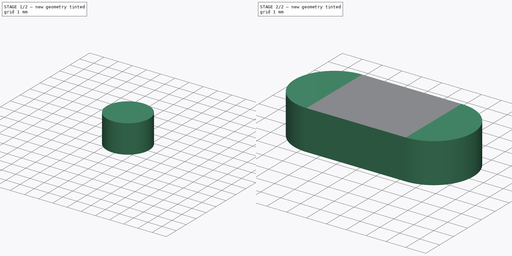
[diagram: build sequence overview — one tinted view per stage of 2, left to right]
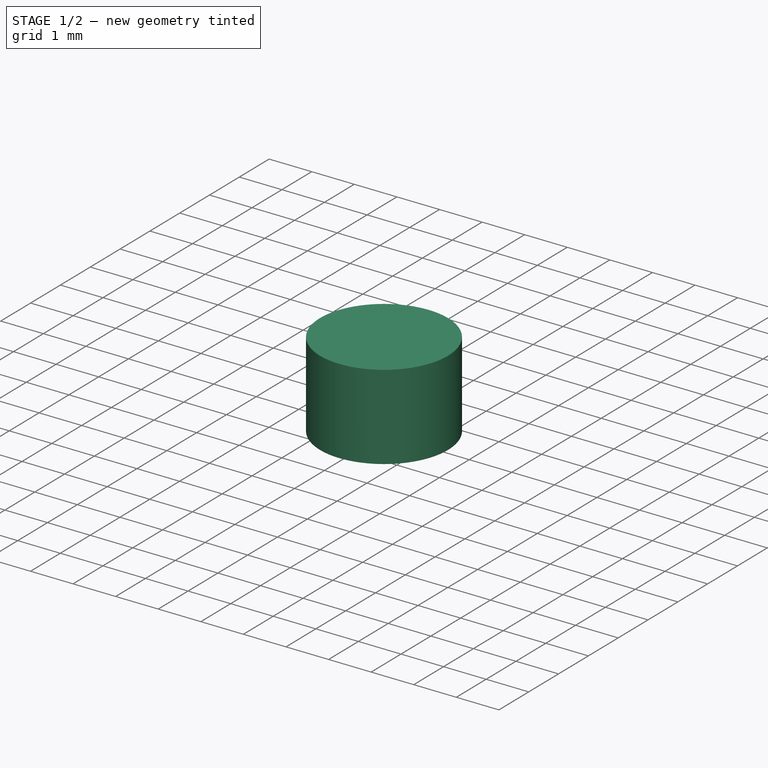
[diagram: stage 1 of 2 — iso view after this stage's code; geometry added in this stage tinted green]
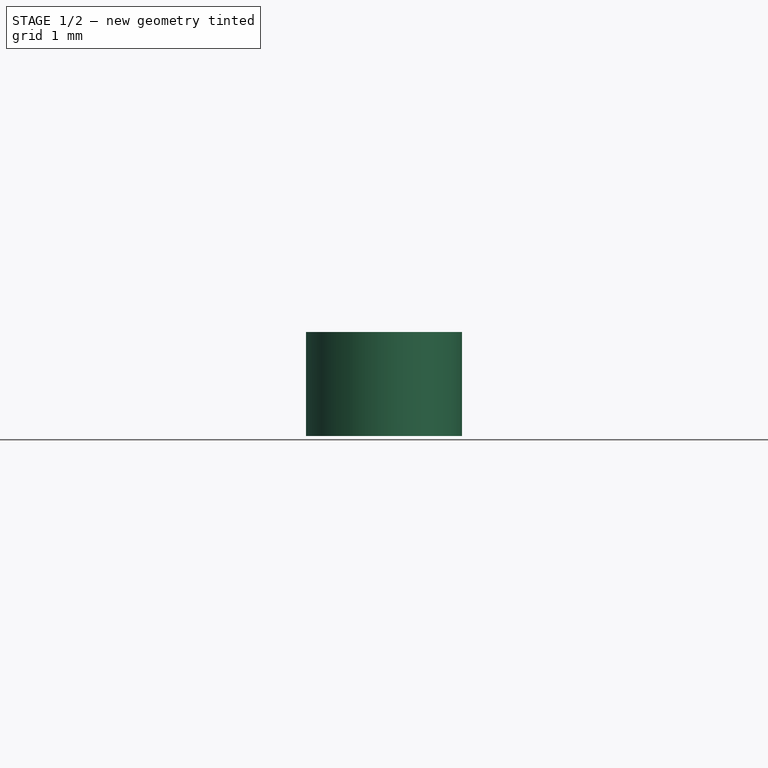
[diagram: stage 1 of 2 — front view after this stage's code; geometry added in this stage tinted green]
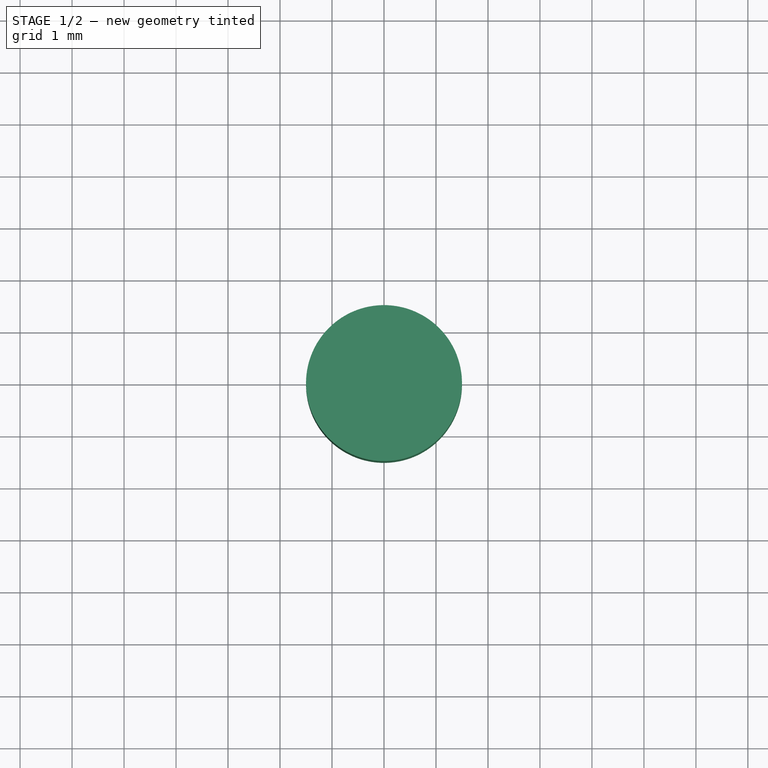
[diagram: stage 1 of 2 — top view after this stage's code; geometry added in this stage tinted green]
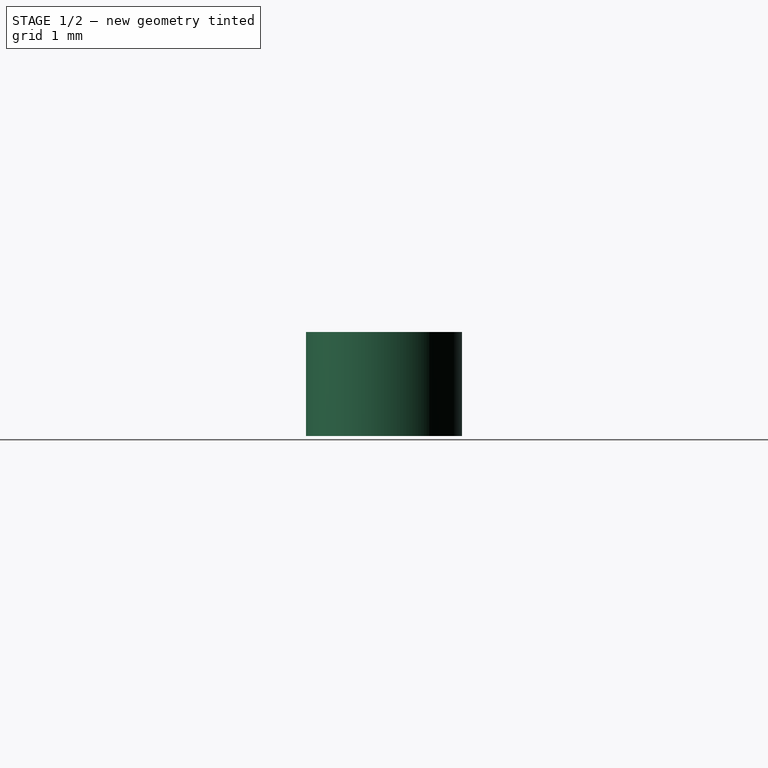
[diagram: stage 1 of 2 — right view after this stage's code; geometry added in this stage tinted green]
FCSTD DOCUMENT  (FreeCAD 0.18.1R)
Label: end_panel
License: All rights reserved
LicenseURL: http://en.wikipedia.org/wiki/All_rights_reserved
objects: Sketcher::SketchObject×3, PartDesign::Pad×2, PartDesign::Body×2, TechDraw::DrawSVGTemplate×1, TechDraw::DrawViewPart×1, TechDraw::DrawPage×1
note: 9 computed .brp shape members not serialized (recipe doc carries the construction recipe); baked Part::Feature solids carry a one-line shape summary decoded from their .brp

FEATURE [PartDesign::Body] Body
  Group = -> [Sketch,Sketch001,Pad]
  Origin = -> Origin
  Tip = -> Pad
FEATURE [Sketcher::SketchObject] Sketch002
  MapMode = 5
  Support = -> [XY_Plane001]
  sketch-geometry (1):
    g0: Circle CenterX=0 CenterY=0 CenterZ=0 NormalX=0 NormalY=0 NormalZ=1 AngleXU=0 Radius=1.5
  constraints (2):
    c: Diameter(g0) = 3
    c: Coincident(g0,g-1)
FEATURE [PartDesign::Pad] Pad001
  Length = 2
  Length2 = 100
  Profile = -> Sketch002
  Refine = true
  Type = 0
FEATURE [PartDesign::Body] Body001
  Group = -> [Sketch002,Pad001]
  Origin = -> Origin001
  Placement = pos=(0,5,0) rot=(0,0,1;0rad)
  Tip = -> Pad001
FEATURE [TechDraw::DrawSVGTemplate] Template
  Height = 210
  Orientation = 1
  Width = 297
FEATURE [TechDraw::DrawViewPart] View
  CoarseView = false
  Direction = (0,0,1)
  Focus = 100
  HardHidden = false
  IsoCount = 0
  IsoHidden = false
  IsoVisible = false
  LockPosition = false
  Perspective = false
  Rotation = 0
  ScaleType = 0
  SeamHidden = false
  SeamVisible = false
  SmoothHidden = false
  SmoothVisible = false
  Source = -> [Body001,Body]
  X = 148.5
  Y = 105
FEATURE [TechDraw::DrawPage] Page
  KeepUpdated = true
  ProjectionType = 0
  Template = -> Template
  Views = -> [View]
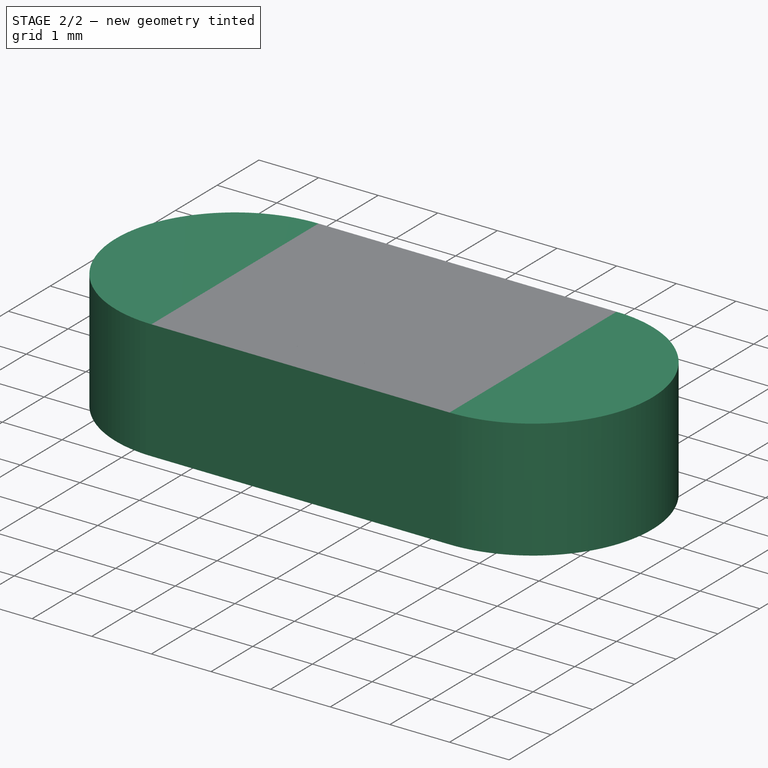
[diagram: stage 2 of 2 — iso view after this stage's code; geometry added in this stage tinted green]
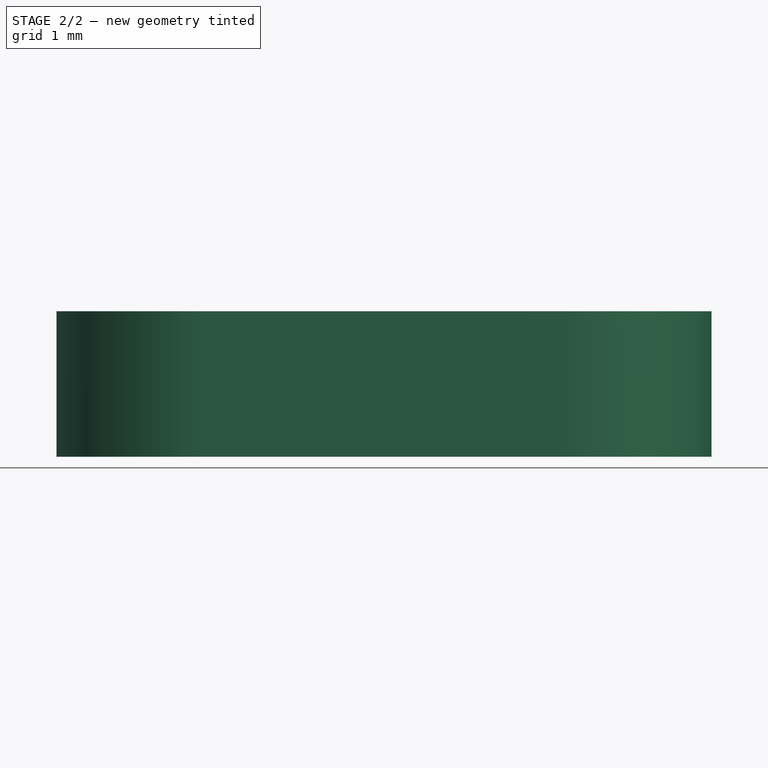
[diagram: stage 2 of 2 — front view after this stage's code; geometry added in this stage tinted green]
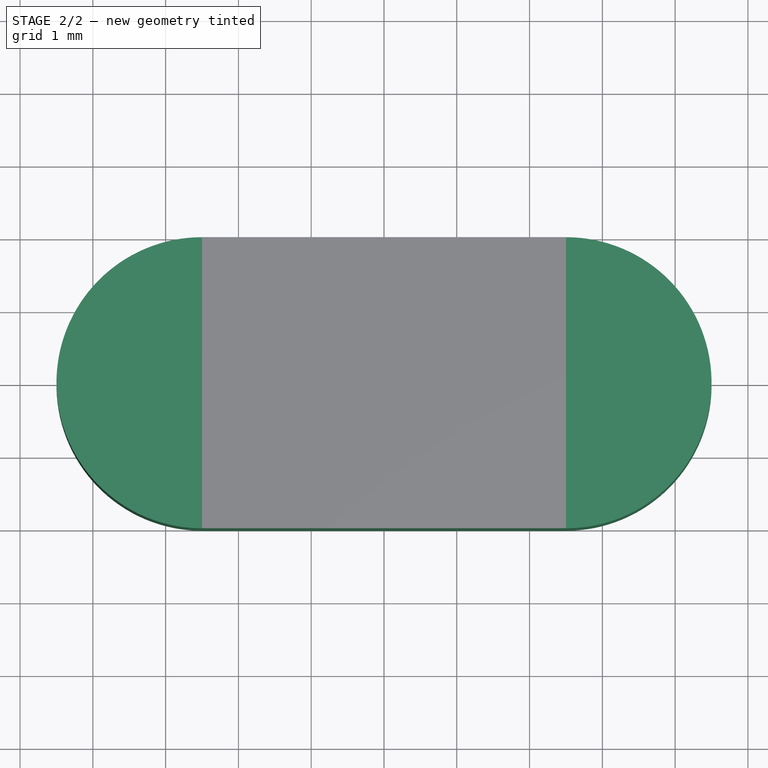
[diagram: stage 2 of 2 — top view after this stage's code; geometry added in this stage tinted green]
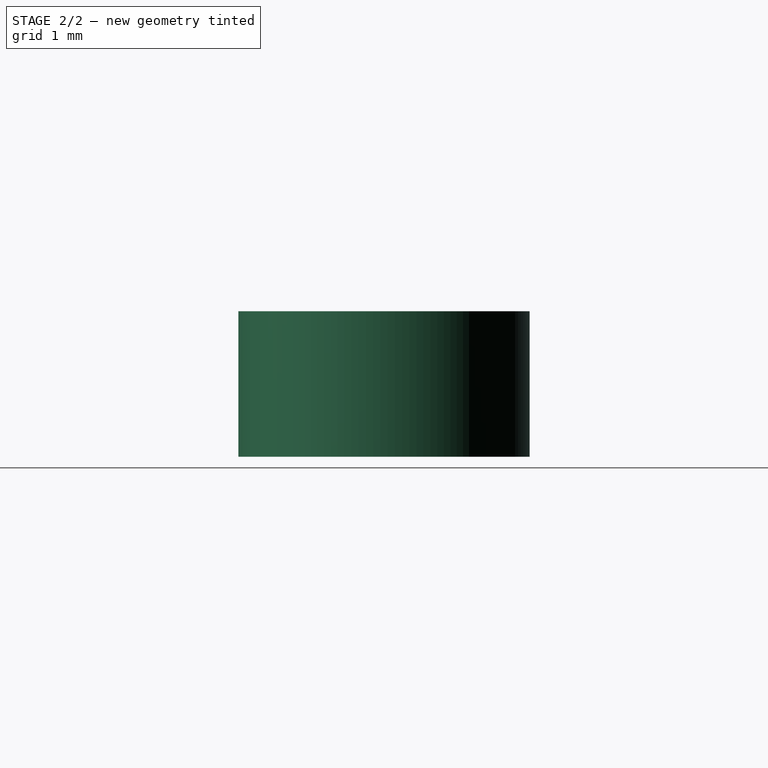
[diagram: stage 2 of 2 — right view after this stage's code; geometry added in this stage tinted green]
FEATURE [Sketcher::SketchObject] Sketch
  MapMode = 5
  Support = -> [XY_Plane]
  sketch-geometry (22):
    g0: Circle CenterX=0 CenterY=-5.7 CenterZ=0 NormalX=0 NormalY=0 NormalZ=1 AngleXU=0 Radius=2.3
    g1: Circle CenterX=0 CenterY=-5.7 CenterZ=0 NormalX=0 NormalY=0 NormalZ=1 AngleXU=0 Radius=1.6
    g2: LineSegment StartX=-29.8 StartY=11.3 StartZ=0 EndX=29.8 EndY=11.3 EndZ=0
    g3: LineSegment StartX=29.8 StartY=11.3 StartZ=0 EndX=29.8 EndY=-11.3 EndZ=0
    g4: LineSegment StartX=29.8 StartY=-11.3 StartZ=0 EndX=-29.8 EndY=-11.3 EndZ=0
    g5: LineSegment StartX=-29.8 StartY=-11.3 StartZ=0 EndX=-29.8 EndY=11.3 EndZ=0
    g6: LineSegment StartX=-28.45 StartY=10.3 StartZ=0 EndX=28.45 EndY=10.3 EndZ=0
    g7: LineSegment StartX=28.45 StartY=10.3 StartZ=0 EndX=28.45 EndY=-10.3 EndZ=0
    g8: LineSegment StartX=28.45 StartY=-10.3 StartZ=0 EndX=-28.45 EndY=-10.3 EndZ=0
    g9: LineSegment StartX=-28.45 StartY=-10.3 StartZ=0 EndX=-28.45 EndY=10.3 EndZ=0
    g10: GeomPoint X=0 Y=11.3 Z=0
    g11: GeomPoint X=-28.45 Y=0 Z=0
    g12: GeomPoint X=29.8 Y=0 Z=0
    g13: GeomPoint X=0 Y=-10.3 Z=0
    g14: LineSegment [constr] StartX=-29.8 StartY=11.3 StartZ=0 EndX=0 EndY=11.3 EndZ=0
    g15: LineSegment [constr] StartX=0 StartY=11.3 StartZ=0 EndX=29.8 EndY=11.3 EndZ=0
    g16: LineSegment [constr] StartX=29.8 StartY=11.3 StartZ=0 EndX=29.8 EndY=0 EndZ=0
    g17: LineSegment [constr] StartX=29.8 StartY=0 StartZ=0 EndX=29.8 EndY=-11.3 EndZ=0
    g18: LineSegment [constr] StartX=28.45 StartY=-10.3 StartZ=0 EndX=0 EndY=-10.3 EndZ=0
    g19: LineSegment [constr] StartX=-28.45 StartY=-10.3 StartZ=0 EndX=0 EndY=-10.3 EndZ=0
    g20: LineSegment [constr] StartX=-28.45 StartY=-10.3 StartZ=0 EndX=-28.45 EndY=0 EndZ=0
    g21: LineSegment [constr] StartX=-28.45 StartY=0 StartZ=0 EndX=-28.45 EndY=10.3 EndZ=0
  constraints (53):
    c: PointOnObject(g0,g-2)
    c: Coincident(g1,g0)
    c: Coincident(g3,g4)
    c: Coincident(g4,g5)
    c: Horizontal(g2)
    c: Horizontal(g4)
    c: Vertical(g3)
    c: Vertical(g5)
    c: Coincident(g6,g7)
    c: Coincident(g7,g8)
    c: Coincident(g8,g9)
    c: Coincident(g9,g6)
    c: Horizontal(g6)
    c: Horizontal(g8)
    c: Vertical(g7)
    c: Vertical(g9)
    c: PointOnObject(g10,g2)
    c: PointOnObject(g11,g9)
    c: PointOnObject(g12,g3)
    c: PointOnObject(g13,g8)
    c: PointOnObject(g10,g-2)
    c: PointOnObject(g11,g-1)
    c: PointOnObject(g13,g-2)
    c: PointOnObject(g12,g-1)
    c: Coincident(g14,g2)
    c: Coincident(g14,g10)
    c: Coincident(g15,g2)
    c: Coincident(g16,g2)
    c: Coincident(g16,g12)
    c: Coincident(g17,g3)
    c: Coincident(g18,g7)
    c: Coincident(g18,g13)
    c: Coincident(g19,g8)
    c: Coincident(g19,g13)
    c: Coincident(g20,g8)
    c: Coincident(g20,g11)
    c: Coincident(g21,g11)
    c: Coincident(g21,g6)
    c: Equal(g20,g21)
    c: Equal(g18,g19)
    c: Equal(g16,g17)
    c: Coincident(g10,g15)
    c: Coincident(g2,g5)
    c: Coincident(g2,g3)
    c: Equal(g14,g15)
    c: Coincident(g12,g17)
    c: DistanceX(g2,g2) = 59.6
    c: DistanceX(g6,g6) = 56.9
    c: DistanceY(g3,g2) = 22.6
    c: DistanceY(g7,g7) = 20.6
    c: DistanceY(g0,g10) = 17
    c: Radius(g0) = 2.3
    c: Radius(g1) = 1.6
FEATURE [Sketcher::SketchObject] Sketch001
  MapMode = 5
  Support = -> [XY_Plane]
  sketch-geometry (6):
    g0: ArcOfCircle CenterX=-2.5 CenterY=-1e-16 CenterZ=0 NormalX=0 NormalY=0 NormalZ=1 AngleXU=0 Radius=2 StartAngle=1.5708 EndAngle=4.71239
    g1: ArcOfCircle CenterX=2.5 CenterY=1e-16 CenterZ=0 NormalX=0 NormalY=0 NormalZ=1 AngleXU=0 Radius=2 StartAngle=4.71239 EndAngle=7.85398
    g2: LineSegment StartX=-2.5 StartY=-2 StartZ=0 EndX=2.5 EndY=-2 EndZ=0
    g3: LineSegment StartX=-2.5 StartY=2 StartZ=0 EndX=2.5 EndY=2 EndZ=0
    g4: GeomPoint X=-4.5 Y=0 Z=0
    g5: GeomPoint X=4.5 Y=0 Z=0
  constraints (13):
    c: Tangent(g0,g3) = 1.5708
    c: Tangent(g0,g2) = -1.5708
    c: Tangent(g2,g1) = -1.5708
    c: Tangent(g3,g1) = 1.5708
    c: Horizontal(g2)
    c: Equal(g0,g1)
    c: PointOnObject(g4,g-1)
    c: PointOnObject(g5,g-1)
    c: PointOnObject(g4,g0)
    c: PointOnObject(g5,g1)
    c: DistanceX(g4,g5) = 9
    c: DistanceY(g1,g1) = 4
    c: Symmetric(g0,g1,g-1)
FEATURE [PartDesign::Pad] Pad
  Length = 2
  Length2 = 100
  Profile = -> Sketch001
  Refine = true
  Type = 0
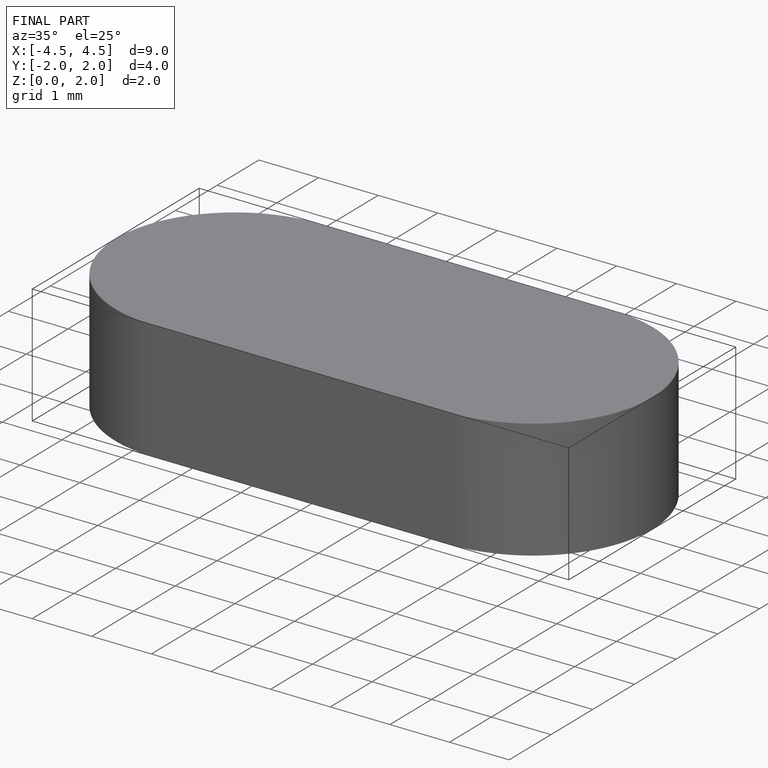
[diagram: finished part — iso view with bounding-box wireframe]
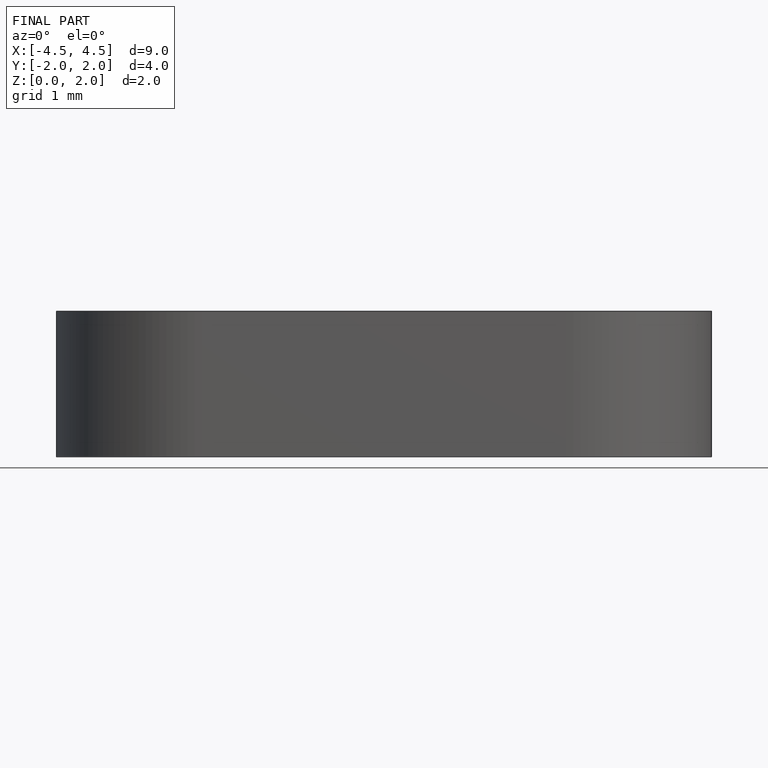
[diagram: finished part — front view with bounding-box wireframe]
